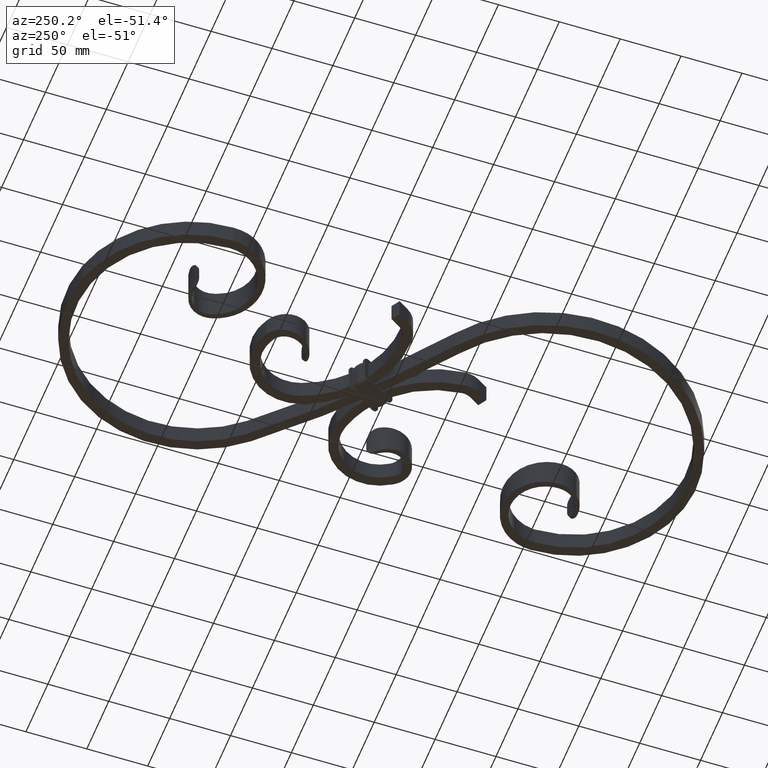
[diagram: clean part render]
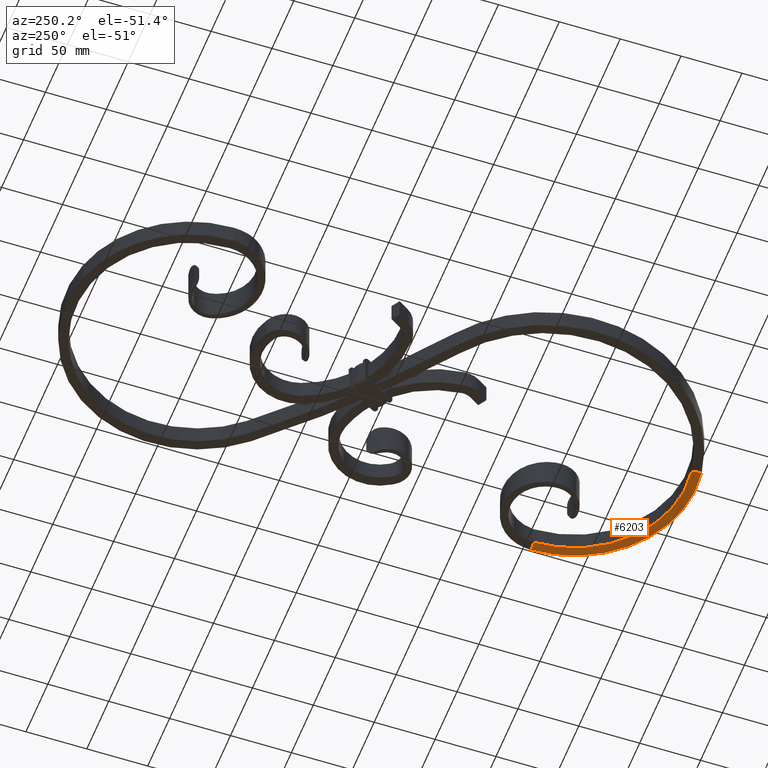
[diagram: same view with one face highlighted and labeled with its STEP entity id]
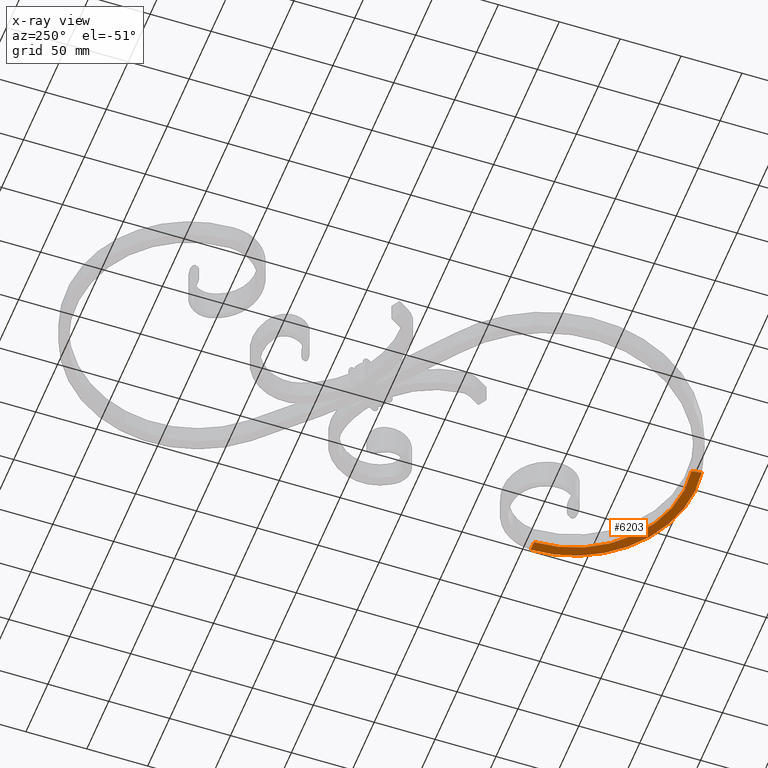
[diagram: x-ray of the same camera — body ghosted, the highlighted face saturated]
A machine part, auxiliary view. The second image highlights one B-rep face of the part: STEP entity #6203.
The next image is the same camera in x-ray: the body ghosted, the highlighted face saturated — about 0% of this face is hidden behind the body in this view.
In plain terms, the highlighted planar face has unit normal (-0, 0, -1).
Its self-contained STEP definition (entity closure, byte-faithful):
#1821 = CARTESIAN_POINT ( 'NONE',  ( 110.0000000000000711, -160.0000000000000000, -8.000000000000000000 ) ) ;
#1931 = EDGE_CURVE ( 'NONE', #12076, #11318, #5208, .T. ) ;
#2008 = ORIENTED_EDGE ( 'NONE', *, *, #1931, .T. ) ;
#2167 = CARTESIAN_POINT ( 'NONE',  ( 10.00000000000003730, -160.0000000000000568, -8.000000000000000000 ) ) ;
#4332 = PLANE ( 'NONE',  #11901 ) ;
#5208 = CIRCLE ( 'NONE', #12326, 92.00000000000004263 ) ;
#6203 = ADVANCED_FACE ( 'NONE', ( #15465 ), #4332, .T. ) ;
#6341 = DIRECTION ( 'NONE',  ( 0.000000000000000000, 0.000000000000000000, 1.000000000000000000 ) ) ;
#6545 = CARTESIAN_POINT ( 'NONE',  ( 10.00000000000003730, -160.0000000000000568, -8.000000000000000000 ) ) ;
#6726 = AXIS2_PLACEMENT_3D ( 'NONE', #6545, #6341, #7955 ) ;
#6863 = EDGE_CURVE ( 'NONE', #14620, #11318, #12929, .T. ) ;
#7955 = DIRECTION ( 'NONE',  ( -0.1666666666666662411, -0.9860132971832693549, 0.000000000000000000 ) ) ;
#8731 = DIRECTION ( 'NONE',  ( -0.000000000000000000, 0.000000000000000000, -1.000000000000000000 ) ) ;
#9052 = VECTOR ( 'NONE', #12046, 1000.000000000000000 ) ;
#10060 = VERTEX_POINT ( 'NONE', #11840 ) ;
#10412 = CARTESIAN_POINT ( 'NONE',  ( 102.0000000000000426, -160.0000000000000000, -8.000000000000000000 ) ) ;
#10573 = EDGE_LOOP ( 'NONE', ( #17115, #13790, #17370, #2008 ) ) ;
#11318 = VERTEX_POINT ( 'NONE', #13400 ) ;
#11840 = CARTESIAN_POINT ( 'NONE',  ( -6.666666666666532848, -258.6013297183266104, -8.000000000000000000 ) ) ;
#11901 = AXIS2_PLACEMENT_3D ( 'NONE', #17476, #8731, #18946 ) ;
#11952 = DIRECTION ( 'NONE',  ( 0.1666666666666661023, 0.9860132971832693549, -0.000000000000000000 ) ) ;
#12046 = DIRECTION ( 'NONE',  ( -1.000000000000000000, -0.000000000000000000, -0.000000000000000000 ) ) ;
#12076 = VERTEX_POINT ( 'NONE', #18991 ) ;
#12326 = AXIS2_PLACEMENT_3D ( 'NONE', #2167, #12370, #12431 ) ;
#12370 = DIRECTION ( 'NONE',  ( 0.000000000000000000, 0.000000000000000000, 1.000000000000000000 ) ) ;
#12431 = DIRECTION ( 'NONE',  ( -0.1666666666666663521, -0.9860132971832693549, 0.000000000000000000 ) ) ;
#12489 = EDGE_CURVE ( 'NONE', #10060, #12076, #14698, .T. ) ;
#12929 = LINE ( 'NONE', #10412, #9052 ) ;
#13400 = CARTESIAN_POINT ( 'NONE',  ( 102.0000000000000568, -160.0000000000000000, -8.000000000000000000 ) ) ;
#13790 = ORIENTED_EDGE ( 'NONE', *, *, #14135, .F. ) ;
#13925 = CIRCLE ( 'NONE', #6726, 100.0000000000000568 ) ;
#14135 = EDGE_CURVE ( 'NONE', #10060, #14620, #13925, .T. ) ;
#14620 = VERTEX_POINT ( 'NONE', #1821 ) ;
#14698 = LINE ( 'NONE', #17658, #15349 ) ;
#15349 = VECTOR ( 'NONE', #11952, 1000.000000000000114 ) ;
#15465 = FACE_OUTER_BOUND ( 'NONE', #10573, .T. ) ;
#17115 = ORIENTED_EDGE ( 'NONE', *, *, #6863, .F. ) ;
#17370 = ORIENTED_EDGE ( 'NONE', *, *, #12489, .T. ) ;
#17476 = CARTESIAN_POINT ( 'NONE',  ( -5.333333333333273529, -250.7132233408608784, -8.000000000000000000 ) ) ;
#17658 = CARTESIAN_POINT ( 'NONE',  ( -5.333333333333217574, -250.7132233408604236, -8.000000000000000000 ) ) ;
#18946 = DIRECTION ( 'NONE',  ( -1.000000000000000000, 0.000000000000000000, 0.000000000000000000 ) ) ;
#18991 = CARTESIAN_POINT ( 'NONE',  ( -5.333333333333248660, -250.7132233408604236, -8.000000000000000000 ) ) ;